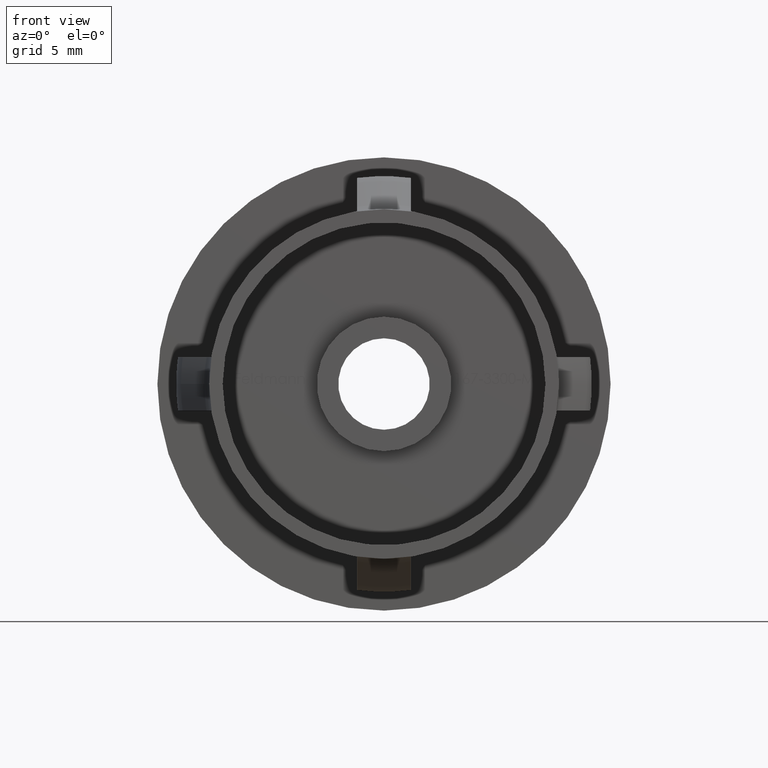
[diagram: clean part render]
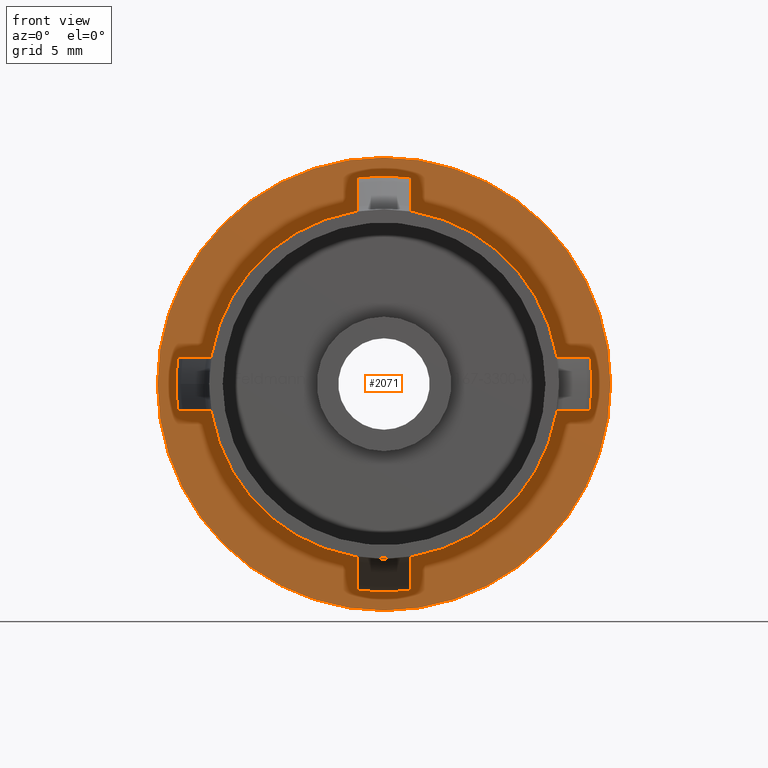
[diagram: same view with one face highlighted and labeled with its STEP entity id]
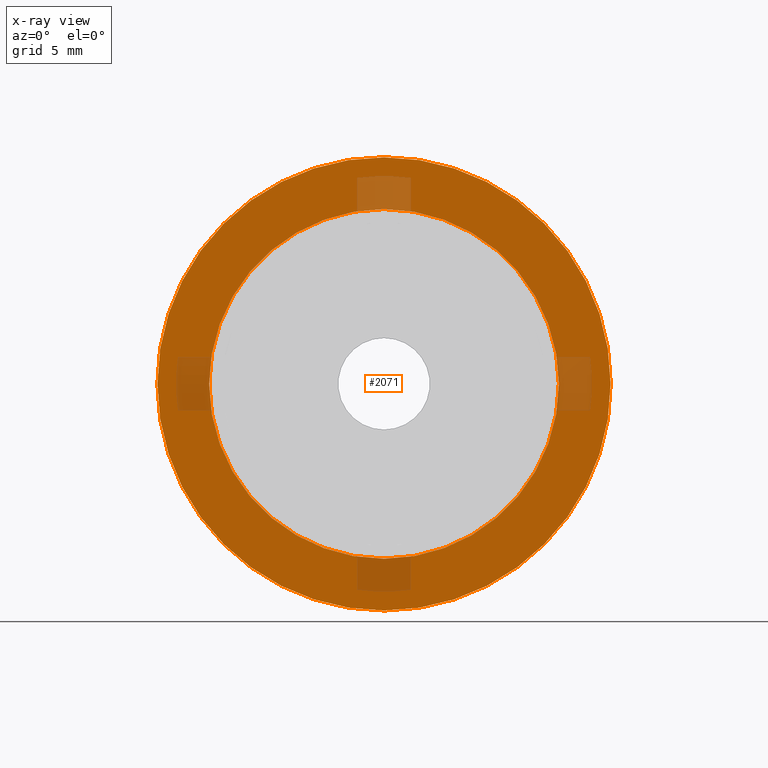
[diagram: x-ray of the same camera — body ghosted, the highlighted face saturated]
A machine part, front view. The second image highlights one B-rep face of the part: STEP entity #2071.
The next image is the same camera in x-ray: the body ghosted, the highlighted face saturated — about 11% of this face is hidden behind the body in this view.
In plain terms, the highlighted planar face has unit normal (0, 1, -0).
Its self-contained STEP definition (entity closure, byte-faithful):
#513 = VERTEX_POINT ( 'NONE', #10369 ) ;
#666 = DIRECTION ( 'NONE',  ( -1.000000000000000000, 0.0000000000000000000, 0.0000000000000000000 ) ) ;
#1476 = EDGE_LOOP ( 'NONE', ( #15378, #9900 ) ) ;
#2071 = ADVANCED_FACE ( 'NONE', ( #13051, #11112 ), #15994, .F. ) ;
#2256 = VERTEX_POINT ( 'NONE', #15087 ) ;
#2339 = CARTESIAN_POINT ( 'NONE',  ( 1.836970198721034600E-016, 23.69999999999999900, 0.0000000000000000000 ) ) ;
#2408 = EDGE_CURVE ( 'NONE', #8626, #513, #10675, .T. ) ;
#2723 = CIRCLE ( 'NONE', #10603, 16.84999999999999800 ) ;
#3749 = CARTESIAN_POINT ( 'NONE',  ( -13.00000000000000000, 23.69999999999999900, 0.0000000000000000000 ) ) ;
#3842 = DIRECTION ( 'NONE',  ( -1.000000000000000000, 7.347880794884120200E-017, 0.0000000000000000000 ) ) ;
#4241 = ORIENTED_EDGE ( 'NONE', *, *, #10875, .F. ) ;
#4257 = EDGE_CURVE ( 'NONE', #14557, #2256, #2723, .T. ) ;
#4578 = AXIS2_PLACEMENT_3D ( 'NONE', #2339, #6828, #16411 ) ;
#5343 = DIRECTION ( 'NONE',  ( 7.347880794884120200E-017, 1.000000000000000000, -0.0000000000000000000 ) ) ;
#6089 = DIRECTION ( 'NONE',  ( 7.347880794884120200E-017, 1.000000000000000000, -0.0000000000000000000 ) ) ;
#6097 = AXIS2_PLACEMENT_3D ( 'NONE', #13543, #12055, #3842 ) ;
#6447 = AXIS2_PLACEMENT_3D ( 'NONE', #14038, #8559, #12799 ) ;
#6828 = DIRECTION ( 'NONE',  ( 7.347880794884120200E-017, 1.000000000000000000, -0.0000000000000000000 ) ) ;
#7542 = CIRCLE ( 'NONE', #4578, 13.00000000000000000 ) ;
#8559 = DIRECTION ( 'NONE',  ( 7.347880794884120200E-017, 1.000000000000000000, -0.0000000000000000000 ) ) ;
#8626 = VERTEX_POINT ( 'NONE', #3749 ) ;
#9832 = AXIS2_PLACEMENT_3D ( 'NONE', #12760, #6089, #666 ) ;
#9900 = ORIENTED_EDGE ( 'NONE', *, *, #16760, .T. ) ;
#10369 = CARTESIAN_POINT ( 'NONE',  ( 13.00000000000000000, 23.69999999999999900, 1.592040838891559500E-015 ) ) ;
#10603 = AXIS2_PLACEMENT_3D ( 'NONE', #12005, #5343, #17539 ) ;
#10675 = CIRCLE ( 'NONE', #6447, 13.00000000000000000 ) ;
#10875 = EDGE_CURVE ( 'NONE', #2256, #14557, #14796, .T. ) ;
#11112 = FACE_BOUND ( 'NONE', #1476, .T. ) ;
#12005 = CARTESIAN_POINT ( 'NONE',  ( 1.836970198721034900E-016, 23.69999999999999900, 0.0000000000000000000 ) ) ;
#12055 = DIRECTION ( 'NONE',  ( 7.347880794884120200E-017, 1.000000000000000000, -0.0000000000000000000 ) ) ;
#12760 = CARTESIAN_POINT ( 'NONE',  ( 1.836970198721034900E-016, 23.69999999999999900, 0.0000000000000000000 ) ) ;
#12799 = DIRECTION ( 'NONE',  ( -1.000000000000000000, 0.0000000000000000000, 0.0000000000000000000 ) ) ;
#13051 = FACE_OUTER_BOUND ( 'NONE', #15065, .T. ) ;
#13543 = CARTESIAN_POINT ( 'NONE',  ( 16.84999999999999800, 23.69999999999999900, 0.0000000000000000000 ) ) ;
#14038 = CARTESIAN_POINT ( 'NONE',  ( 1.836970198721034600E-016, 23.69999999999999900, 0.0000000000000000000 ) ) ;
#14557 = VERTEX_POINT ( 'NONE', #15121 ) ;
#14796 = CIRCLE ( 'NONE', #9832, 16.84999999999999800 ) ;
#15065 = EDGE_LOOP ( 'NONE', ( #17287, #4241 ) ) ;
#15087 = CARTESIAN_POINT ( 'NONE',  ( 16.84999999999999800, 23.69999999999999900, 2.063529856563289500E-015 ) ) ;
#15121 = CARTESIAN_POINT ( 'NONE',  ( -16.84999999999999800, 23.69999999999999900, 0.0000000000000000000 ) ) ;
#15378 = ORIENTED_EDGE ( 'NONE', *, *, #2408, .T. ) ;
#15994 = PLANE ( 'NONE',  #6097 ) ;
#16411 = DIRECTION ( 'NONE',  ( -1.000000000000000000, 0.0000000000000000000, 0.0000000000000000000 ) ) ;
#16760 = EDGE_CURVE ( 'NONE', #513, #8626, #7542, .T. ) ;
#17287 = ORIENTED_EDGE ( 'NONE', *, *, #4257, .F. ) ;
#17539 = DIRECTION ( 'NONE',  ( -1.000000000000000000, 0.0000000000000000000, 0.0000000000000000000 ) ) ;